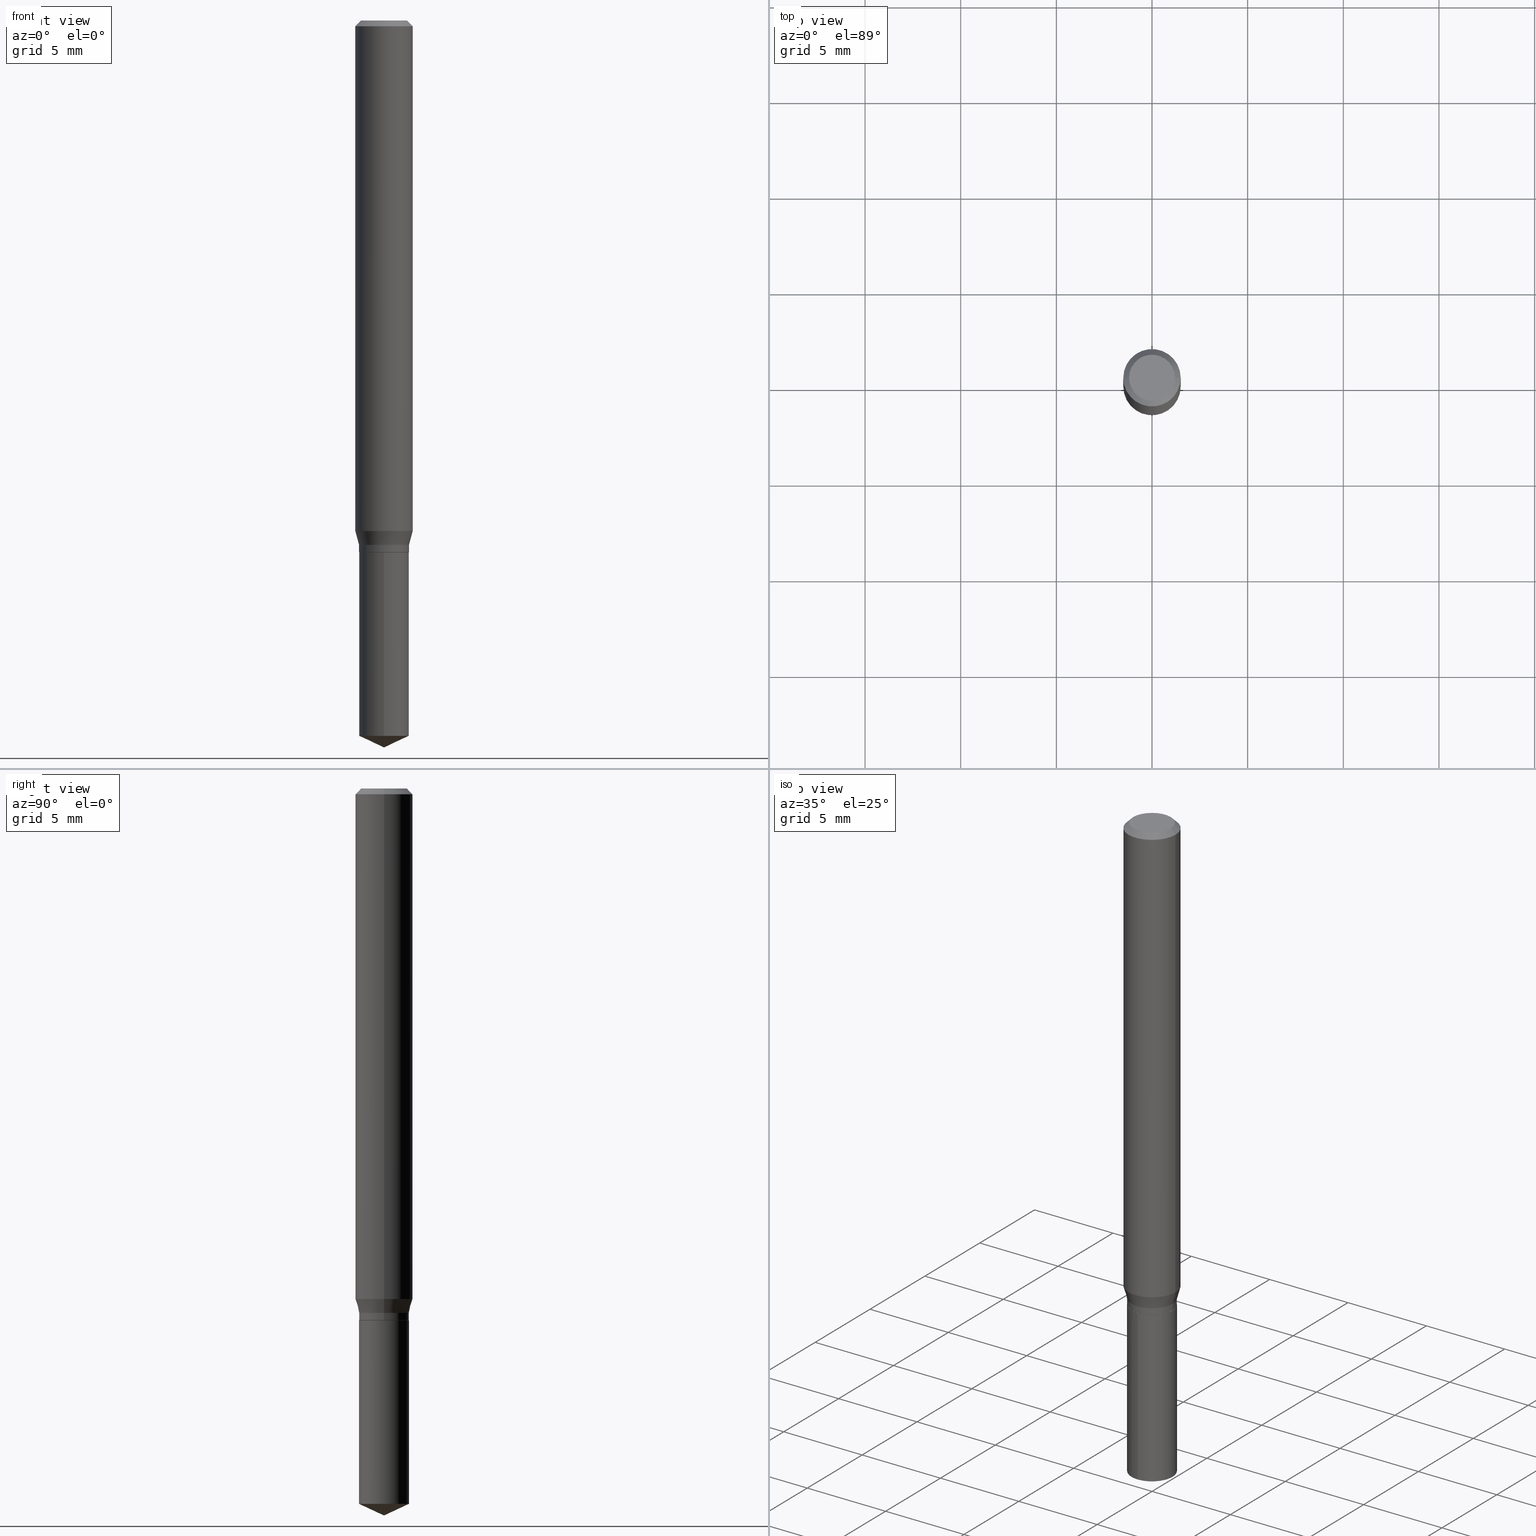
[diagram: canonical four-view strip — front | top / right | iso, engineering-drawing reading convention]
A machine part, canonical four-view strip (front | top / right | iso — engineering-drawing reading convention). The complete STEP part file that produces these views, byte-faithful:
ISO-10303-21;
HEADER;
FILE_DESCRIPTION (( 'STEP AP203' ),
    '1' );
FILE_NAME ('07674.STEP',
    '2024-04-24T00:48:47',
    ( '' ),
    ( '' ),
    'SwSTEP 2.0',
    'SolidWorks 2023',
    '' );
FILE_SCHEMA (( 'CONFIG_CONTROL_DESIGN' ));
ENDSEC;

DATA;
#1 = LINE ( 'NONE', #415, #367 ) ;
#2 = LINE ( 'NONE', #273, #110 ) ;
#3 = CARTESIAN_POINT ( 'NONE',  ( 2.888098660104663766E-31, -4.123439461173779647E-17, -0.01181000000000007044 ) ) ;
#4 = DIRECTION ( 'NONE',  ( 1.000000000000000000, -6.982962677686266711E-15, 0.000000000000000000 ) ) ;
#5 = DIRECTION ( 'NONE',  ( -2.445458899330790108E-29, 3.491495526022433205E-15, 1.000000000000000000 ) ) ;
#6 = VECTOR ( 'NONE', #50, 39.37007874015748143 ) ;
#7 = APPROVAL_PERSON_ORGANIZATION ( #27, #297, #215 ) ;
#8 = VERTEX_POINT ( 'NONE', #128 ) ;
#9 = DIRECTION ( 'NONE',  ( -6.982962677686265133E-15, -1.000000000000000000, 5.314879365105569519E-15 ) ) ;
#10 = EDGE_CURVE ( 'NONE', #230, #161, #411, .T. ) ;
#11 = CARTESIAN_POINT ( 'NONE',  ( 0.05904999999999999832, -4.463468013801466955E-16, -0.01181000000000007044 ) ) ;
#12 = CARTESIAN_POINT ( 'NONE',  ( 0.05904999999999999832, -4.535783407291118600E-16, -0.01181000000000007044 ) ) ;
#13 = CC_DESIGN_DATE_AND_TIME_ASSIGNMENT ( #63, #480, ( #253 ) ) ;
#14 = ORIENTED_EDGE ( 'NONE', *, *, #449, .T. ) ;
#15 = FACE_OUTER_BOUND ( 'NONE', #142, .T. ) ;
#16 = AXIS2_PLACEMENT_3D ( 'NONE', #113, #380, #234 ) ;
#17 = VECTOR ( 'NONE', #354, 39.37007874015748143 ) ;
#18 = CARTESIAN_POINT ( 'NONE',  ( 4.132873053354867254E-48, -5.900647395337818946E-34, -1.690012582823346072E-19 ) ) ;
#19 = DATE_AND_TIME ( #440, #95 ) ;
#20 = VERTEX_POINT ( 'NONE', #181 ) ;
#21 = DIRECTION ( 'NONE',  ( -6.982962677686265133E-15, -1.000000000000000000, 5.314879365105569519E-15 ) ) ;
#22 = EDGE_LOOP ( 'NONE', ( #339, #266 ) ) ;
#23 = AXIS2_PLACEMENT_3D ( 'NONE', #41, #157, #4 ) ;
#24 = DATE_TIME_ROLE ( 'classification_date' ) ;
#25 = APPROVAL_PERSON_ORGANIZATION ( #133, #53, #138 ) ;
#26 = ORIENTED_EDGE ( 'NONE', *, *, #296, .F. ) ;
#27 = PERSON_AND_ORGANIZATION ( #320, #239 ) ;
#28 = DIRECTION ( 'NONE',  ( -2.445458899330790108E-29, 3.491495526022433205E-15, 1.000000000000000000 ) ) ;
#29 = APPLICATION_PROTOCOL_DEFINITION ( 'international standard', 'config_control_design', 1994, #476 ) ;
#30 = ORIENTED_EDGE ( 'NONE', *, *, #463, .T. ) ;
#31 = EDGE_CURVE ( 'NONE', #84, #333, #94, .T. ) ;
#32 = CLOSED_SHELL ( 'NONE', ( #428, #131, #363, #168, #400, #361, #313, #40, #126, #434, #478, #66 ) ) ;
#33 = EDGE_LOOP ( 'NONE', ( #447, #432, #130, #73 ) ) ;
#34 = EDGE_LOOP ( 'NONE', ( #55, #136, #114 ) ) ;
#35 = DIRECTION ( 'NONE',  ( -2.445468806185136877E-29, 3.491481338843145188E-15, 1.000000000000000000 ) ) ;
#36 = DIRECTION ( 'NONE',  ( -2.445468806185136597E-29, 3.491481338843145583E-15, 1.000000000000000000 ) ) ;
#37 = DIRECTION ( 'NONE',  ( 2.445458899330789267E-29, -3.491495526022433599E-15, -1.000000000000000000 ) ) ;
#38 = FACE_OUTER_BOUND ( 'NONE', #479, .T. ) ;
#39 = CIRCLE ( 'NONE', #103, 0.05139999999999999430 ) ;
#40 = ADVANCED_FACE ( 'NONE', ( #187 ), #260, .T. ) ;
#41 = CARTESIAN_POINT ( 'NONE',  ( 2.888098660104663766E-31, -4.123439461173779647E-17, -0.01181000000000007044 ) ) ;
#42 = FACE_OUTER_BOUND ( 'NONE', #454, .T. ) ;
#43 = ADVANCED_FACE ( 'NONE', ( #446 ), #370, .T. ) ;
#44 = DIRECTION ( 'NONE',  ( 1.000000000000000000, -6.982962677686267499E-15, 4.876176775795935793E-29 ) ) ;
#45 = DIRECTION ( 'NONE',  ( -1.000000000000000000, 6.982962677686266711E-15, 0.000000000000000000 ) ) ;
#46 = DIRECTION ( 'NONE',  ( -0.7071067811865453523, 2.468850131082234184E-15, -0.7071067811865496822 ) ) ;
#47 = EDGE_CURVE ( 'NONE', #193, #20, #106, .T. ) ;
#48 = DIRECTION ( 'NONE',  ( 1.000000000000000000, -6.982962677686261977E-15, 0.000000000000000000 ) ) ;
#49 = DIRECTION ( 'NONE',  ( -6.982962677686265133E-15, -1.000000000000000000, 2.657439682552784759E-15 ) ) ;
#50 = DIRECTION ( 'NONE',  ( 0.7071067811865453523, -7.319954787623248157E-15, -0.7071067811865496822 ) ) ;
#51 = CARTESIAN_POINT ( 'NONE',  ( -0.04724000000000000421, 3.504923541997677355E-16, -3.380025165670481712E-19 ) ) ;
#52 = EDGE_CURVE ( 'NONE', #414, #484, #281, .T. ) ;
#53 = APPROVAL ( #176, 'UNSPECIFIED' ) ;
#54 = DIRECTION ( 'NONE',  ( -2.445468806185136597E-29, 3.491481338843145583E-15, 1.000000000000000000 ) ) ;
#55 = ORIENTED_EDGE ( 'NONE', *, *, #194, .F. ) ;
#56 = CIRCLE ( 'NONE', #292, 0.04724000000000000421 ) ;
#57 =( GEOMETRIC_REPRESENTATION_CONTEXT ( 3 ) GLOBAL_UNCERTAINTY_ASSIGNED_CONTEXT ( ( #287 ) ) GLOBAL_UNIT_ASSIGNED_CONTEXT ( ( #466, #145, #336 ) ) REPRESENTATION_CONTEXT ( 'NONE', 'WORKASPACE' ) );
#58 = COORDINATED_UNIVERSAL_TIME_OFFSET ( 5, 0, .BEHIND. ) ;
#59 = DIRECTION ( 'NONE',  ( -2.445458899330790108E-29, 3.491495526022433205E-15, 1.000000000000000000 ) ) ;
#60 = COORDINATED_UNIVERSAL_TIME_OFFSET ( 5, 0, .BEHIND. ) ;
#61 = VERTEX_POINT ( 'NONE', #166 ) ;
#62 = AXIS2_PLACEMENT_3D ( 'NONE', #468, #120, #44 ) ;
#63 = DATE_AND_TIME ( #472, #488 ) ;
#64 = CARTESIAN_POINT ( 'NONE',  ( -0.05139999999999999430, -3.428450082539327784E-15, -1.093999999999999861 ) ) ;
#65 = CALENDAR_DATE ( 2024, 23, 4 ) ;
#66 = ADVANCED_FACE ( 'NONE', ( #124 ), #331, .T. ) ;
#67 = MANIFOLD_SOLID_BREP ( 'Body-Move/Copy2[2]', #32 ) ;
#68 = CLOSED_SHELL ( 'NONE', ( #43, #392, #482, #105, #98 ) ) ;
#69 = AXIS2_PLACEMENT_3D ( 'NONE', #430, #388, #48 ) ;
#70 = DIRECTION ( 'NONE',  ( 1.000000000000000000, -6.982962677686263555E-15, 0.000000000000000000 ) ) ;
#71 = ORIENTED_EDGE ( 'NONE', *, *, #449, .F. ) ;
#72 = DIRECTION ( 'NONE',  ( 1.000000000000000000, -6.982962677686266711E-15, 4.876185090822587894E-29 ) ) ;
#73 = ORIENTED_EDGE ( 'NONE', *, *, #302, .F. ) ;
#74 = DIRECTION ( 'NONE',  ( -2.445468806185136877E-29, 3.491481338843145188E-15, 1.000000000000000000 ) ) ;
#75 = EDGE_LOOP ( 'NONE', ( #489, #393, #442, #441 ) ) ;
#76 = CARTESIAN_POINT ( 'NONE',  ( 0.04724000000000000421, -3.852183633974369345E-16, -3.380025165621689721E-19 ) ) ;
#77 = AXIS2_PLACEMENT_3D ( 'NONE', #299, #28, #374 ) ;
#78 = AXIS2_PLACEMENT_3D ( 'NONE', #18, #470, #201 ) ;
#79 = CARTESIAN_POINT ( 'NONE',  ( 0.05905000000000006771, -4.123439461173745257E-16, 2.879382386107503723E-30 ) ) ;
#80 = CARTESIAN_POINT ( 'NONE',  ( 2.888098660104663766E-31, -4.123439461173779647E-17, -0.01181000000000007044 ) ) ;
#81 = EDGE_CURVE ( 'NONE', #61, #193, #263, .T. ) ;
#82 = PLANE ( 'NONE',  #164 ) ;
#83 = DIRECTION ( 'NONE',  ( -2.445468806185136877E-29, 3.491481338843145188E-15, 1.000000000000000000 ) ) ;
#84 = VERTEX_POINT ( 'NONE', #64 ) ;
#85 = CYLINDRICAL_SURFACE ( 'NONE', #62, 0.05139999999999999430 ) ;
#86 = AXIS2_PLACEMENT_3D ( 'NONE', #228, #240, #49 ) ;
#87 = CARTESIAN_POINT ( 'NONE',  ( 2.676565608369632355E-29, -3.821426325363822773E-15, -1.094500000000000028 ) ) ;
#88 = AXIS2_PLACEMENT_3D ( 'NONE', #306, #112, #227 ) ;
#89 = CARTESIAN_POINT ( 'NONE',  ( 0.000000000000000000, 0.000000000000000000, 0.000000000000000000 ) ) ;
#90 = CARTESIAN_POINT ( 'NONE',  ( 2.638905388754380459E-29, -3.767657512745638097E-15, -1.079099999999999948 ) ) ;
#91 = EDGE_CURVE ( 'NONE', #191, #20, #483, .T. ) ;
#92 = ORIENTED_EDGE ( 'NONE', *, *, #194, .T. ) ;
#93 = PERSON_AND_ORGANIZATION ( #320, #239 ) ;
#94 = CIRCLE ( 'NONE', #143, 0.05139999999999999430 ) ;
#95 = LOCAL_TIME ( 20, 48, 47.00000000000000000, #141 ) ;
#96 = PERSON_AND_ORGANIZATION ( #320, #239 ) ;
#97 = ORIENTED_EDGE ( 'NONE', *, *, #206, .F. ) ;
#98 = ADVANCED_FACE ( 'NONE', ( #192 ), #310, .F. ) ;
#99 = EDGE_LOOP ( 'NONE', ( #167, #405, #186, #26 ) ) ;
#100 = PERSON_AND_ORGANIZATION_ROLE ( 'creator' ) ;
#101 = CARTESIAN_POINT ( 'NONE',  ( 0.000000000000000000, 0.000000000000000000, 0.000000000000000000 ) ) ;
#102 = VECTOR ( 'NONE', #200, 39.37007874015748143 ) ;
#103 = AXIS2_PLACEMENT_3D ( 'NONE', #90, #421, #462 ) ;
#104 = APPROVAL_DATE_TIME ( #19, #140 ) ;
#105 = ADVANCED_FACE ( 'NONE', ( #195 ), #344, .T. ) ;
#106 = LINE ( 'NONE', #258, #123 ) ;
#107 = ORIENTED_EDGE ( 'NONE', *, *, #358, .F. ) ;
#108 = DIRECTION ( 'NONE',  ( 1.000000000000000000, -6.982962677686261977E-15, 0.000000000000000000 ) ) ;
#109 = AXIS2_PLACEMENT_3D ( 'NONE', #80, #382, #45 ) ;
#110 = VECTOR ( 'NONE', #35, 39.37007874015748143 ) ;
#111 = ORIENTED_EDGE ( 'NONE', *, *, #319, .T. ) ;
#112 = DIRECTION ( 'NONE',  ( -2.445468806185136597E-29, 3.491481338843145583E-15, 1.000000000000000000 ) ) ;
#113 = CARTESIAN_POINT ( 'NONE',  ( 2.638905388754380459E-29, -3.767657512745638097E-15, -1.079099999999999948 ) ) ;
#114 = ORIENTED_EDGE ( 'NONE', *, *, #81, .F. ) ;
#115 = DIRECTION ( 'NONE',  ( -2.445458899330790108E-29, 3.491495526022433599E-15, 1.000000000000000000 ) ) ;
#116 = VECTOR ( 'NONE', #46, 39.37007874015748143 ) ;
#117 = CARTESIAN_POINT ( 'NONE',  ( 2.638905388754380459E-29, -3.767657512745638097E-15, -1.079099999999999948 ) ) ;
#118 = CYLINDRICAL_SURFACE ( 'NONE', #249, 0.05905000000000006771 ) ;
#119 = DIRECTION ( 'NONE',  ( 1.000000000000000000, -6.982962677686266711E-15, 4.876185090822587894E-29 ) ) ;
#120 = DIRECTION ( 'NONE',  ( -2.445468806185136597E-29, 3.491481338843145583E-15, 1.000000000000000000 ) ) ;
#121 = FACE_OUTER_BOUND ( 'NONE', #207, .T. ) ;
#122 = CARTESIAN_POINT ( 'NONE',  ( 0.000000000000000000, 0.000000000000000000, 0.000000000000000000 ) ) ;
#123 = VECTOR ( 'NONE', #262, 39.37007874015748143 ) ;
#124 = FACE_OUTER_BOUND ( 'NONE', #437, .T. ) ;
#125 = CIRCLE ( 'NONE', #298, 0.05905000000000013710 ) ;
#126 = ADVANCED_FACE ( 'NONE', ( #42 ), #386, .T. ) ;
#127 = CARTESIAN_POINT ( 'NONE',  ( 0.05139999999999999430, -4.126581794378712641E-15, -1.079099999999999948 ) ) ;
#128 = CARTESIAN_POINT ( 'NONE',  ( -0.05905000000000013710, -3.248399576289951039E-15, -1.050549811322097682 ) ) ;
#129 = DIRECTION ( 'NONE',  ( -2.445458899330790108E-29, 3.491495526022433205E-15, 1.000000000000000000 ) ) ;
#130 = ORIENTED_EDGE ( 'NONE', *, *, #91, .F. ) ;
#131 = ADVANCED_FACE ( 'NONE', ( #274 ), #376, .T. ) ;
#132 = EDGE_LOOP ( 'NONE', ( #250, #92, #246 ) ) ;
#133 = PERSON_AND_ORGANIZATION ( #320, #239 ) ;
#134 = ADVANCED_BREP_SHAPE_REPRESENTATION ( '07674', ( #219, #67, #345 ), #57 ) ;
#135 = EDGE_CURVE ( 'NONE', #403, #300, #56, .T. ) ;
#136 = ORIENTED_EDGE ( 'NONE', *, *, #348, .T. ) ;
#137 = VECTOR ( 'NONE', #115, 39.37007874015748143 ) ;
#138 = APPROVAL_ROLE ( '' ) ;
#139 = DATE_AND_TIME ( #65, #149 ) ;
#140 = APPROVAL ( #334, 'UNSPECIFIED' ) ;
#141 = COORDINATED_UNIVERSAL_TIME_OFFSET ( 5, 0, .BEHIND. ) ;
#142 = EDGE_LOOP ( 'NONE', ( #456, #111, #245, #286 ) ) ;
#143 = AXIS2_PLACEMENT_3D ( 'NONE', #413, #36, #70 ) ;
#144 = CIRCLE ( 'NONE', #399, 0.05139999999999999430 ) ;
#145 =( NAMED_UNIT ( * ) PLANE_ANGLE_UNIT ( ) SI_UNIT ( $, .RADIAN. ) );
#146 = EDGE_CURVE ( 'NONE', #305, #8, #232, .T. ) ;
#147 = PRODUCT_DEFINITION_SHAPE ( 'NONE', 'NONE',  #253 ) ;
#148 = AXIS2_PLACEMENT_3D ( 'NONE', #362, #327, #289 ) ;
#149 = LOCAL_TIME ( 20, 48, 47.00000000000000000, #60 ) ;
#150 = DIRECTION ( 'NONE',  ( 6.439704144417050863E-15, 0.9063077870366550437, 0.4226182617406884501 ) ) ;
#151 = LINE ( 'NONE', #311, #337 ) ;
#152 = EDGE_CURVE ( 'NONE', #300, #414, #275, .T. ) ;
#153 = DIRECTION ( 'NONE',  ( 2.445468806185136597E-29, -3.491481338843145583E-15, -1.000000000000000000 ) ) ;
#154 = DIRECTION ( 'NONE',  ( -6.328713451373394622E-15, -0.9063077870366521571, 0.4226182617406947784 ) ) ;
#155 = FACE_OUTER_BOUND ( 'NONE', #34, .T. ) ;
#156 = PRODUCT_DEFINITION_FORMATION_WITH_SPECIFIED_SOURCE ( 'ANY', '', #312, .NOT_KNOWN. ) ;
#157 = DIRECTION ( 'NONE',  ( -2.445468806185136597E-29, 3.491481338843145583E-15, 1.000000000000000000 ) ) ;
#158 = LINE ( 'NONE', #247, #377 ) ;
#159 = CARTESIAN_POINT ( 'NONE',  ( 3.600048621020370796E-29, -5.139926017961446759E-15, -1.472131786370833639 ) ) ;
#160 = EDGE_CURVE ( 'NONE', #333, #486, #1, .T. ) ;
#161 = VERTEX_POINT ( 'NONE', #315 ) ;
#162 = CYLINDRICAL_SURFACE ( 'NONE', #256, 0.05139999999999999430 ) ;
#163 = CONICAL_SURFACE ( 'NONE', #16, 0.05139999999999999430, 0.2617993877991501850 ) ;
#164 = AXIS2_PLACEMENT_3D ( 'NONE', #276, #196, #359 ) ;
#165 = DIRECTION ( 'NONE',  ( -6.982962677686267499E-15, -1.000000000000000000, 3.520397390770389972E-15 ) ) ;
#166 = CARTESIAN_POINT ( 'NONE',  ( -3.589242816330381089E-16, -0.05140000000000514990, -1.472131786370833195 ) ) ;
#167 = ORIENTED_EDGE ( 'NONE', *, *, #47, .F. ) ;
#168 = ADVANCED_FACE ( 'NONE', ( #121 ), #163, .T. ) ;
#169 = DIRECTION ( 'NONE',  ( 0.000000000000000000, 0.000000000000000000, 1.000000000000000000 ) ) ;
#170 = CARTESIAN_POINT ( 'NONE',  ( 3.600048621020370796E-29, -5.139926017961446759E-15, -1.472131786370833639 ) ) ;
#171 = AXIS2_PLACEMENT_3D ( 'NONE', #3, #153, #314 ) ;
#172 = ORIENTED_EDGE ( 'NONE', *, *, #31, .T. ) ;
#173 = CONICAL_SURFACE ( 'NONE', #69, 0.05090000000000000080, 0.7853981633972689780 ) ;
#174 = CALENDAR_DATE ( 2024, 23, 4 ) ;
#175 = ORIENTED_EDGE ( 'NONE', *, *, #261, .F. ) ;
#176 = APPROVAL_STATUS ( 'not_yet_approved' ) ;
#177 = CARTESIAN_POINT ( 'NONE',  ( 0.000000000000000000, 0.000000000000000000, 0.000000000000000000 ) ) ;
#178 = EDGE_CURVE ( 'NONE', #484, #414, #238, .T. ) ;
#179 = APPLICATION_CONTEXT ( 'configuration controlled 3d designs of mechanical parts and assemblies' ) ;
#180 = PERSON_AND_ORGANIZATION ( #320, #239 ) ;
#181 = CARTESIAN_POINT ( 'NONE',  ( 3.652189661807275455E-16, 0.05139999999999619179, -1.094500000000000028 ) ) ;
#182 = CONICAL_SURFACE ( 'NONE', #338, 0.05139999999999999430, 0.2617993877991501850 ) ;
#183 = EDGE_LOOP ( 'NONE', ( #243, #175 ) ) ;
#184 = CARTESIAN_POINT ( 'NONE',  ( -3.589242816330473287E-16, -0.05140000000000383151, -1.094499999999999806 ) ) ;
#185 = ORIENTED_EDGE ( 'NONE', *, *, #91, .T. ) ;
#186 = ORIENTED_EDGE ( 'NONE', *, *, #302, .T. ) ;
#187 = FACE_OUTER_BOUND ( 'NONE', #75, .T. ) ;
#188 = DIRECTION ( 'NONE',  ( 6.982962677686265922E-15, 1.000000000000000000, -3.491495526022433599E-15 ) ) ;
#189 = CC_DESIGN_PERSON_AND_ORGANIZATION_ASSIGNMENT ( #180, #100, ( #156 ) ) ;
#190 = AXIS2_PLACEMENT_3D ( 'NONE', #265, #340, #72 ) ;
#191 = VERTEX_POINT ( 'NONE', #241 ) ;
#192 = FACE_OUTER_BOUND ( 'NONE', #404, .T. ) ;
#193 = VERTEX_POINT ( 'NONE', #353 ) ;
#194 = EDGE_CURVE ( 'NONE', #475, #61, #151, .T. ) ;
#195 = FACE_OUTER_BOUND ( 'NONE', #99, .T. ) ;
#196 = DIRECTION ( 'NONE',  ( -2.438088387897960049E-29, 3.491481338843145188E-15, 1.000000000000000000 ) ) ;
#197 = CARTESIAN_POINT ( 'NONE',  ( 8.265746106709734507E-48, -1.180129479067563789E-33, -3.380025165646692144E-19 ) ) ;
#198 = PLANE ( 'NONE',  #78 ) ;
#199 = CIRCLE ( 'NONE', #445, 0.05139999999999999430 ) ;
#200 = DIRECTION ( 'NONE',  ( -0.2588190451025214611, 5.211531920934550253E-15, 0.9659258262890679791 ) ) ;
#201 = DIRECTION ( 'NONE',  ( -1.000000000000000000, 6.982962677686265922E-15, -4.876176775795935793E-29 ) ) ;
#202 = CARTESIAN_POINT ( 'NONE',  ( 0.05090000000000000080, -4.176859125658053522E-15, -1.094500000000000028 ) ) ;
#203 = CARTESIAN_POINT ( 'NONE',  ( -9.261924752013118283E-28, 1.322368428517963298E-13, 37.87397874015748300 ) ) ;
#204 = DIRECTION ( 'NONE',  ( -2.445468806185136597E-29, 3.491481338843145583E-15, 1.000000000000000000 ) ) ;
#205 = AXIS2_PLACEMENT_3D ( 'NONE', #177, #220, #343 ) ;
#206 = EDGE_CURVE ( 'NONE', #161, #84, #277, .T. ) ;
#207 = EDGE_LOOP ( 'NONE', ( #208, #394, #444, #324 ) ) ;
#208 = ORIENTED_EDGE ( 'NONE', *, *, #222, .T. ) ;
#209 = APPROVAL_STATUS ( 'not_yet_approved' ) ;
#210 = ORIENTED_EDGE ( 'NONE', *, *, #135, .F. ) ;
#211 = PERSON_AND_ORGANIZATION ( #320, #239 ) ;
#212 = EDGE_CURVE ( 'NONE', #8, #484, #422, .T. ) ;
#213 = AXIS2_PLACEMENT_3D ( 'NONE', #203, #129, #288 ) ;
#214 = PERSON_AND_ORGANIZATION_ROLE ( 'creator' ) ;
#215 = APPROVAL_ROLE ( '' ) ;
#216 = ORIENTED_EDGE ( 'NONE', *, *, #278, .F. ) ;
#217 = CARTESIAN_POINT ( 'NONE',  ( 2.888098660104663766E-31, -4.123439461173779647E-17, -0.01181000000000007044 ) ) ;
#218 = EDGE_CURVE ( 'NONE', #294, #414, #419, .T. ) ;
#219 = MANIFOLD_SOLID_BREP ( 'Body-Move/Copy2[1]', #68 ) ;
#220 = DIRECTION ( 'NONE',  ( -2.445468806185136597E-29, 3.491481338843145583E-15, 1.000000000000000000 ) ) ;
#221 = AXIS2_PLACEMENT_3D ( 'NONE', #335, #451, #108 ) ;
#222 = EDGE_CURVE ( 'NONE', #486, #305, #199, .T. ) ;
#223 = CC_DESIGN_APPROVAL ( #53, ( #156 ) ) ;
#224 = CC_DESIGN_SECURITY_CLASSIFICATION ( #283, ( #156 ) ) ;
#225 = CARTESIAN_POINT ( 'NONE',  ( -0.05139999999999999430, -3.428450082539327784E-15, -1.079099999999999948 ) ) ;
#226 = CARTESIAN_POINT ( 'NONE',  ( 0.05139999999999999430, -4.178604866327475025E-15, -1.093999999999999861 ) ) ;
#227 = DIRECTION ( 'NONE',  ( 1.000000000000000000, -6.982962677686264344E-15, 0.000000000000000000 ) ) ;
#228 = CARTESIAN_POINT ( 'NONE',  ( 2.676565608369631794E-29, -3.821426325363822773E-15, -1.094499999999999806 ) ) ;
#229 = AXIS2_PLACEMENT_3D ( 'NONE', #87, #420, #383 ) ;
#230 = VERTEX_POINT ( 'NONE', #202 ) ;
#231 = DIRECTION ( 'NONE',  ( -2.445458899330790108E-29, 3.491495526022433205E-15, 1.000000000000000000 ) ) ;
#232 = LINE ( 'NONE', #465, #102 ) ;
#233 = CARTESIAN_POINT ( 'NONE',  ( 3.658651059288794515E-29, -5.223626456482161457E-15, -1.496099999999999985 ) ) ;
#234 = DIRECTION ( 'NONE',  ( 1.000000000000000000, -6.982962677686263555E-15, 0.000000000000000000 ) ) ;
#235 = DIRECTION ( 'NONE',  ( -2.445468806185136597E-29, 3.491481338843145583E-15, 1.000000000000000000 ) ) ;
#236 = DIRECTION ( 'NONE',  ( 1.000000000000000000, -6.982962677686263555E-15, 0.000000000000000000 ) ) ;
#237 = LENGTH_MEASURE_WITH_UNIT ( LENGTH_MEASURE( 0.02539999999999999897 ), #464 );
#238 = CIRCLE ( 'NONE', #23, 0.05904999999999999832 ) ;
#239 = ORGANIZATION ( 'UNSPECIFIED', 'UNSPECIFIED', '' ) ;
#240 = DIRECTION ( 'NONE',  ( -2.445458899330790108E-29, 3.491495526022433205E-15, 1.000000000000000000 ) ) ;
#241 = CARTESIAN_POINT ( 'NONE',  ( -3.589242816330473287E-16, -0.05140000000000383151, -1.094499999999999806 ) ) ;
#242 = ORIENTED_EDGE ( 'NONE', *, *, #261, .T. ) ;
#243 = ORIENTED_EDGE ( 'NONE', *, *, #10, .F. ) ;
#244 = CARTESIAN_POINT ( 'NONE',  ( 0.05139999999999999430, -4.126581794378712641E-15, -1.079099999999999948 ) ) ;
#245 = ORIENTED_EDGE ( 'NONE', *, *, #222, .F. ) ;
#246 = ORIENTED_EDGE ( 'NONE', *, *, #417, .F. ) ;
#247 = CARTESIAN_POINT ( 'NONE',  ( 0.05090000000000000080, -4.176859125658053522E-15, -1.094500000000000028 ) ) ;
#248 = COORDINATED_UNIVERSAL_TIME_OFFSET ( 5, 0, .BEHIND. ) ;
#249 = AXIS2_PLACEMENT_3D ( 'NONE', #89, #424, #325 ) ;
#250 = ORIENTED_EDGE ( 'NONE', *, *, #348, .F. ) ;
#251 = APPROVAL_DATE_TIME ( #409, #53 ) ;
#252 = EDGE_LOOP ( 'NONE', ( #452, #401, #307, #473 ) ) ;
#253 = PRODUCT_DEFINITION ( 'UNKNOWN', '', #156, #397 ) ;
#254 = APPROVAL_DATE_TIME ( #295, #297 ) ;
#255 = MECHANICAL_CONTEXT ( 'NONE', #179, 'mechanical' ) ;
#256 = AXIS2_PLACEMENT_3D ( 'NONE', #122, #235, #384 ) ;
#257 = CALENDAR_DATE ( 2024, 23, 4 ) ;
#258 = CARTESIAN_POINT ( 'NONE',  ( 3.652189661807182270E-16, 0.05139999999999617791, -1.094500000000000028 ) ) ;
#259 = CC_DESIGN_PERSON_AND_ORGANIZATION_ASSIGNMENT ( #96, #402, ( #283 ) ) ;
#260 = CYLINDRICAL_SURFACE ( 'NONE', #205, 0.05905000000000006771 ) ;
#261 = EDGE_CURVE ( 'NONE', #161, #230, #360, .T. ) ;
#262 = DIRECTION ( 'NONE',  ( -2.445458899330790108E-29, 3.491495526022433599E-15, 1.000000000000000000 ) ) ;
#263 = CIRCLE ( 'NONE', #271, 0.05140000000000000818 ) ;
#264 = DIRECTION ( 'NONE',  ( -2.445468806185136597E-29, 3.491481338843145583E-15, 1.000000000000000000 ) ) ;
#265 = CARTESIAN_POINT ( 'NONE',  ( 8.265746106709734507E-48, -1.180129479067563789E-33, -3.380025165646692144E-19 ) ) ;
#266 = ORIENTED_EDGE ( 'NONE', *, *, #323, .T. ) ;
#267 = CARTESIAN_POINT ( 'NONE',  ( 2.675342873966538993E-29, -3.819680584694400481E-15, -1.093999999999999861 ) ) ;
#268 = CARTESIAN_POINT ( 'NONE',  ( 2.676565608369631794E-29, -3.821426325363822773E-15, -1.094499999999999806 ) ) ;
#269 = CARTESIAN_POINT ( 'NONE',  ( -0.05090000000000000080, -3.459760072861932167E-15, -1.094500000000000028 ) ) ;
#270 = ORIENTED_EDGE ( 'NONE', *, *, #309, .F. ) ;
#271 = AXIS2_PLACEMENT_3D ( 'NONE', #170, #59, #21 ) ;
#272 = AXIS2_PLACEMENT_3D ( 'NONE', #391, #352, #165 ) ;
#273 = CARTESIAN_POINT ( 'NONE',  ( -0.05139999999999999430, 3.652189661806914551E-16, -2.528332636391021463E-30 ) ) ;
#274 = FACE_OUTER_BOUND ( 'NONE', #329, .T. ) ;
#275 = LINE ( 'NONE', #11, #6 ) ;
#276 = CARTESIAN_POINT ( 'NONE',  ( 6.255723195914554260E-30, -6.758565450182621025E-15, -1.094500000000000028 ) ) ;
#277 = LINE ( 'NONE', #269, #398 ) ;
#278 = EDGE_CURVE ( 'NONE', #403, #484, #385, .T. ) ;
#279 = DIRECTION ( 'NONE',  ( -2.445468806185136597E-29, 3.491481338843145583E-15, 1.000000000000000000 ) ) ;
#280 = ORIENTED_EDGE ( 'NONE', *, *, #278, .T. ) ;
#281 = CIRCLE ( 'NONE', #316, 0.05904999999999999832 ) ;
#282 = LINE ( 'NONE', #127, #17 ) ;
#283 = SECURITY_CLASSIFICATION ( '', '', #477 ) ;
#284 = FACE_OUTER_BOUND ( 'NONE', #396, .T. ) ;
#285 = ORIENTED_EDGE ( 'NONE', *, *, #296, .T. ) ;
#286 = ORIENTED_EDGE ( 'NONE', *, *, #160, .F. ) ;
#287 = UNCERTAINTY_MEASURE_WITH_UNIT (LENGTH_MEASURE( 1.000000000000000082E-05 ), #466, 'distance_accuracy_value', 'NONE');
#288 = DIRECTION ( 'NONE',  ( -6.982962677686267499E-15, -1.000000000000000000, 3.520397390770389972E-15 ) ) ;
#289 = DIRECTION ( 'NONE',  ( 1.000000000000000000, -6.982962677686261977E-15, 0.000000000000000000 ) ) ;
#290 = ORIENTED_EDGE ( 'NONE', *, *, #323, .F. ) ;
#291 = PERSON_AND_ORGANIZATION ( #320, #239 ) ;
#292 = AXIS2_PLACEMENT_3D ( 'NONE', #197, #54, #119 ) ;
#293 = CIRCLE ( 'NONE', #326, 0.05140000000000000818 ) ;
#294 = VERTEX_POINT ( 'NONE', #350 ) ;
#295 = DATE_AND_TIME ( #174, #351 ) ;
#296 = EDGE_CURVE ( 'NONE', #20, #191, #474, .T. ) ;
#297 = APPROVAL ( #209, 'UNSPECIFIED' ) ;
#298 = AXIS2_PLACEMENT_3D ( 'NONE', #433, #204, #356 ) ;
#299 = CARTESIAN_POINT ( 'NONE',  ( 2.676565608369631794E-29, -3.821426325363822773E-15, -1.094499999999999806 ) ) ;
#300 = VERTEX_POINT ( 'NONE', #76 ) ;
#301 = VECTOR ( 'NONE', #83, 39.37007874015748143 ) ;
#302 = EDGE_CURVE ( 'NONE', #61, #191, #378, .T. ) ;
#303 = VECTOR ( 'NONE', #425, 39.37007874015748143 ) ;
#304 = CIRCLE ( 'NONE', #190, 0.04724000000000000421 ) ;
#305 = VERTEX_POINT ( 'NONE', #225 ) ;
#306 = CARTESIAN_POINT ( 'NONE',  ( 2.569086792931870576E-29, -3.667975061756291716E-15, -1.050549811322097682 ) ) ;
#307 = ORIENTED_EDGE ( 'NONE', *, *, #52, .F. ) ;
#308 = CARTESIAN_POINT ( 'NONE',  ( -0.05904999999999999832, 3.711095515056362547E-16, -0.01181000000000007044 ) ) ;
#309 = EDGE_CURVE ( 'NONE', #333, #84, #144, .T. ) ;
#310 = PLANE ( 'NONE',  #435 ) ;
#311 = CARTESIAN_POINT ( 'NONE',  ( 3.658651059288795076E-29, -5.223626456482161457E-15, -1.496099999999999985 ) ) ;
#312 = PRODUCT ( '07674', '07674', '', ( #255 ) ) ;
#313 = ADVANCED_FACE ( 'NONE', ( #373 ), #182, .T. ) ;
#314 = DIRECTION ( 'NONE',  ( -1.000000000000000000, 6.982962677686266711E-15, 0.000000000000000000 ) ) ;
#315 = CARTESIAN_POINT ( 'NONE',  ( -0.05090000000000000080, -3.457110845687820572E-15, -1.094500000000000028 ) ) ;
#316 = AXIS2_PLACEMENT_3D ( 'NONE', #217, #490, #357 ) ;
#317 = APPROVAL_PERSON_ORGANIZATION ( #369, #140, #328 ) ;
#318 = FACE_OUTER_BOUND ( 'NONE', #22, .T. ) ;
#319 = EDGE_CURVE ( 'NONE', #84, #305, #2, .T. ) ;
#320 = PERSON ( 'UNSPECIFIED', 'UNSPECIFIED', 'UNSPECIFIED', ('UNSPECIFIED'), ('UNSPECIFIED'), ('UNSPECIFIED') ) ;
#321 = CARTESIAN_POINT ( 'NONE',  ( -0.05904999999999999832, -1.435029242717674243E-15, -0.01181000000000007044 ) ) ;
#322 = FACE_OUTER_BOUND ( 'NONE', #183, .T. ) ;
#323 = EDGE_CURVE ( 'NONE', #300, #403, #304, .T. ) ;
#324 = ORIENTED_EDGE ( 'NONE', *, *, #395, .F. ) ;
#325 = DIRECTION ( 'NONE',  ( 1.000000000000000000, -6.982962677686266711E-15, 4.876176775795936353E-29 ) ) ;
#326 = AXIS2_PLACEMENT_3D ( 'NONE', #159, #5, #9 ) ;
#327 = DIRECTION ( 'NONE',  ( -2.445468806185136597E-29, 3.491481338843145583E-15, 1.000000000000000000 ) ) ;
#328 = APPROVAL_ROLE ( '' ) ;
#329 = EDGE_LOOP ( 'NONE', ( #290, #365, #426, #216 ) ) ;
#330 = COORDINATED_UNIVERSAL_TIME_OFFSET ( 5, 0, .BEHIND. ) ;
#331 = CONICAL_SURFACE ( 'NONE', #148, 0.05090000000000000080, 0.7853981633972689780 ) ;
#332 = ORIENTED_EDGE ( 'NONE', *, *, #463, .F. ) ;
#333 = VERTEX_POINT ( 'NONE', #226 ) ;
#334 = APPROVAL_STATUS ( 'not_yet_approved' ) ;
#335 = CARTESIAN_POINT ( 'NONE',  ( 2.676565608369632355E-29, -3.821426325363822773E-15, -1.094500000000000028 ) ) ;
#336 =( NAMED_UNIT ( * ) SI_UNIT ( $, .STERADIAN. ) SOLID_ANGLE_UNIT ( ) );
#337 = VECTOR ( 'NONE', #154, 39.37007874015748143 ) ;
#338 = AXIS2_PLACEMENT_3D ( 'NONE', #459, #264, #347 ) ;
#339 = ORIENTED_EDGE ( 'NONE', *, *, #135, .T. ) ;
#340 = DIRECTION ( 'NONE',  ( -2.445468806185136597E-29, 3.491481338843145583E-15, 1.000000000000000000 ) ) ;
#341 = ORIENTED_EDGE ( 'NONE', *, *, #146, .F. ) ;
#342 = LINE ( 'NONE', #487, #467 ) ;
#343 = DIRECTION ( 'NONE',  ( 1.000000000000000000, -6.982962677686266711E-15, 4.876176775795936353E-29 ) ) ;
#344 = CYLINDRICAL_SURFACE ( 'NONE', #443, 0.05140000000000000818 ) ;
#345 = AXIS2_PLACEMENT_3D ( 'NONE', #101, #169, #481 ) ;
#346 = PRODUCT_RELATED_PRODUCT_CATEGORY ( 'detail', '', ( #312 ) ) ;
#347 = DIRECTION ( 'NONE',  ( 1.000000000000000000, -6.982962677686263555E-15, 0.000000000000000000 ) ) ;
#348 = EDGE_CURVE ( 'NONE', #475, #193, #342, .T. ) ;
#349 = FACE_OUTER_BOUND ( 'NONE', #132, .T. ) ;
#350 = CARTESIAN_POINT ( 'NONE',  ( 0.05905000000000013710, -4.080319007873665847E-15, -1.050549811322097682 ) ) ;
#351 = LOCAL_TIME ( 20, 48, 47.00000000000000000, #330 ) ;
#352 = DIRECTION ( 'NONE',  ( -2.445458899330790108E-29, 3.491495526022433205E-15, 1.000000000000000000 ) ) ;
#353 = CARTESIAN_POINT ( 'NONE',  ( 3.652189661807274962E-16, 0.05139999999999486646, -1.472131786370833861 ) ) ;
#354 = DIRECTION ( 'NONE',  ( 0.2588190451025214611, 1.565188264969620982E-15, 0.9659258262890679791 ) ) ;
#355 = ORIENTED_EDGE ( 'NONE', *, *, #160, .T. ) ;
#356 = DIRECTION ( 'NONE',  ( 1.000000000000000000, -6.982962677686264344E-15, 0.000000000000000000 ) ) ;
#357 = DIRECTION ( 'NONE',  ( 1.000000000000000000, -6.982962677686266711E-15, 0.000000000000000000 ) ) ;
#358 = EDGE_CURVE ( 'NONE', #8, #294, #412, .T. ) ;
#359 = DIRECTION ( 'NONE',  ( 1.000000000000000000, -6.982962677686265922E-15, 4.876176775795935793E-29 ) ) ;
#360 = CIRCLE ( 'NONE', #229, 0.05090000000000000080 ) ;
#361 = ADVANCED_FACE ( 'NONE', ( #38 ), #162, .T. ) ;
#362 = CARTESIAN_POINT ( 'NONE',  ( 2.676565608369632355E-29, -3.821426325363822773E-15, -1.094500000000000028 ) ) ;
#363 = ADVANCED_FACE ( 'NONE', ( #381 ), #118, .T. ) ;
#364 = ORIENTED_EDGE ( 'NONE', *, *, #395, .T. ) ;
#365 = ORIENTED_EDGE ( 'NONE', *, *, #152, .T. ) ;
#366 = APPLICATION_PROTOCOL_DEFINITION ( 'international standard', 'config_control_design', 1994, #179 ) ;
#367 = VECTOR ( 'NONE', #74, 39.37007874015748143 ) ;
#368 = CC_DESIGN_DATE_AND_TIME_ASSIGNMENT ( #139, #24, ( #283 ) ) ;
#369 = PERSON_AND_ORGANIZATION ( #320, #239 ) ;
#370 = CYLINDRICAL_SURFACE ( 'NONE', #77, 0.05140000000000000818 ) ;
#371 = CC_DESIGN_APPROVAL ( #140, ( #253 ) ) ;
#372 = ORIENTED_EDGE ( 'NONE', *, *, #178, .T. ) ;
#373 = FACE_OUTER_BOUND ( 'NONE', #431, .T. ) ;
#374 = DIRECTION ( 'NONE',  ( -6.982962677686265133E-15, -1.000000000000000000, 2.657439682552784759E-15 ) ) ;
#375 = ORIENTED_EDGE ( 'NONE', *, *, #152, .F. ) ;
#376 = CONICAL_SURFACE ( 'NONE', #109, 0.05904999999999999832, 0.7853981633974452814 ) ;
#377 = VECTOR ( 'NONE', #429, 39.37007874015748854 ) ;
#378 = LINE ( 'NONE', #184, #137 ) ;
#379 = DIRECTION ( 'NONE',  ( -6.982962677686265133E-15, -1.000000000000000000, 2.657439682552784759E-15 ) ) ;
#380 = DIRECTION ( 'NONE',  ( -2.445468806185136597E-29, 3.491481338843145583E-15, 1.000000000000000000 ) ) ;
#381 = FACE_OUTER_BOUND ( 'NONE', #252, .T. ) ;
#382 = DIRECTION ( 'NONE',  ( 2.445468806185136597E-29, -3.491481338843145583E-15, -1.000000000000000000 ) ) ;
#383 = DIRECTION ( 'NONE',  ( 1.000000000000000000, -6.982962677686261977E-15, 0.000000000000000000 ) ) ;
#384 = DIRECTION ( 'NONE',  ( 1.000000000000000000, -6.982962677686267499E-15, 4.876176775795935793E-29 ) ) ;
#385 = LINE ( 'NONE', #308, #116 ) ;
#386 = CONICAL_SURFACE ( 'NONE', #171, 0.05904999999999999832, 0.7853981633974452814 ) ;
#387 = CONICAL_SURFACE ( 'NONE', #213, 84.42940631927586992, 1.134464013796322890 ) ;
#388 = DIRECTION ( 'NONE',  ( -2.445468806185136597E-29, 3.491481338843145583E-15, 1.000000000000000000 ) ) ;
#389 = DIRECTION ( 'NONE',  ( -0.7071067811864205632, 7.493145998869895043E-15, 0.7071067811866742492 ) ) ;
#390 = ORIENTED_EDGE ( 'NONE', *, *, #319, .F. ) ;
#391 = CARTESIAN_POINT ( 'NONE',  ( -9.261924752013118283E-28, 1.322368428517963298E-13, 37.87397874015748300 ) ) ;
#392 = ADVANCED_FACE ( 'NONE', ( #155 ), #387, .T. ) ;
#393 = ORIENTED_EDGE ( 'NONE', *, *, #358, .T. ) ;
#394 = ORIENTED_EDGE ( 'NONE', *, *, #146, .T. ) ;
#395 = EDGE_CURVE ( 'NONE', #486, #294, #282, .T. ) ;
#396 = EDGE_LOOP ( 'NONE', ( #469, #458, #270, #332 ) ) ;
#397 = DESIGN_CONTEXT ( 'detailed design', #476, 'design' ) ;
#398 = VECTOR ( 'NONE', #389, 39.37007874015748854 ) ;
#399 = AXIS2_PLACEMENT_3D ( 'NONE', #267, #416, #450 ) ;
#400 = ADVANCED_FACE ( 'NONE', ( #15 ), #85, .T. ) ;
#401 = ORIENTED_EDGE ( 'NONE', *, *, #212, .T. ) ;
#402 = PERSON_AND_ORGANIZATION_ROLE ( 'classification_officer' ) ;
#403 = VERTEX_POINT ( 'NONE', #51 ) ;
#404 = EDGE_LOOP ( 'NONE', ( #185, #285 ) ) ;
#405 = ORIENTED_EDGE ( 'NONE', *, *, #417, .T. ) ;
#406 = SHAPE_DEFINITION_REPRESENTATION ( #147, #134 ) ;
#407 = PERSON_AND_ORGANIZATION_ROLE ( 'design_owner' ) ;
#408 = CC_DESIGN_PERSON_AND_ORGANIZATION_ASSIGNMENT ( #211, #407, ( #312 ) ) ;
#409 = DATE_AND_TIME ( #257, #438 ) ;
#410 = CARTESIAN_POINT ( 'NONE',  ( 2.676565608369631794E-29, -3.821426325363822773E-15, -1.094499999999999806 ) ) ;
#411 = CIRCLE ( 'NONE', #221, 0.05090000000000000080 ) ;
#412 = CIRCLE ( 'NONE', #88, 0.05905000000000013710 ) ;
#413 = CARTESIAN_POINT ( 'NONE',  ( 2.675342873966538993E-29, -3.819680584694400481E-15, -1.093999999999999861 ) ) ;
#414 = VERTEX_POINT ( 'NONE', #12 ) ;
#415 = CARTESIAN_POINT ( 'NONE',  ( 0.05139999999999999430, -3.589242816330741006E-16, 2.506354862759110714E-30 ) ) ;
#416 = DIRECTION ( 'NONE',  ( -2.445468806185136597E-29, 3.491481338843145583E-15, 1.000000000000000000 ) ) ;
#417 = EDGE_CURVE ( 'NONE', #193, #61, #293, .T. ) ;
#418 = DIRECTION ( 'NONE',  ( -2.445458899330790108E-29, 3.491495526022433205E-15, 1.000000000000000000 ) ) ;
#419 = LINE ( 'NONE', #79, #301 ) ;
#420 = DIRECTION ( 'NONE',  ( -2.445468806185136597E-29, 3.491481338843145583E-15, 1.000000000000000000 ) ) ;
#421 = DIRECTION ( 'NONE',  ( -2.445468806185136597E-29, 3.491481338843145583E-15, 1.000000000000000000 ) ) ;
#422 = LINE ( 'NONE', #460, #303 ) ;
#423 = EDGE_CURVE ( 'NONE', #294, #8, #125, .T. ) ;
#424 = DIRECTION ( 'NONE',  ( -2.445468806185136597E-29, 3.491481338843145583E-15, 1.000000000000000000 ) ) ;
#425 = DIRECTION ( 'NONE',  ( -2.445468806185136877E-29, 3.491481338843145188E-15, 1.000000000000000000 ) ) ;
#426 = ORIENTED_EDGE ( 'NONE', *, *, #52, .T. ) ;
#427 = AXIS2_PLACEMENT_3D ( 'NONE', #410, #231, #448 ) ;
#428 = ADVANCED_FACE ( 'NONE', ( #284 ), #173, .T. ) ;
#429 = DIRECTION ( 'NONE',  ( 0.7071067811864205632, -2.468850131080928224E-15, 0.7071067811866742492 ) ) ;
#430 = CARTESIAN_POINT ( 'NONE',  ( 2.676565608369632355E-29, -3.821426325363822773E-15, -1.094500000000000028 ) ) ;
#431 = EDGE_LOOP ( 'NONE', ( #341, #14, #364, #107 ) ) ;
#432 = ORIENTED_EDGE ( 'NONE', *, *, #47, .T. ) ;
#433 = CARTESIAN_POINT ( 'NONE',  ( 2.569086792931870576E-29, -3.667975061756291716E-15, -1.050549811322097682 ) ) ;
#434 = ADVANCED_FACE ( 'NONE', ( #318 ), #198, .F. ) ;
#435 = AXIS2_PLACEMENT_3D ( 'NONE', #457, #37, #188 ) ;
#436 = PERSON_AND_ORGANIZATION_ROLE ( 'design_supplier' ) ;
#437 = EDGE_LOOP ( 'NONE', ( #97, #242, #30, #471 ) ) ;
#438 = LOCAL_TIME ( 20, 48, 47.00000000000000000, #58 ) ;
#439 = DIMENSIONAL_EXPONENTS ( 1.000000000000000000, 0.000000000000000000, 0.000000000000000000, 0.000000000000000000, 0.000000000000000000, 0.000000000000000000, 0.000000000000000000 ) ;
#440 = CALENDAR_DATE ( 2024, 23, 4 ) ;
#441 = ORIENTED_EDGE ( 'NONE', *, *, #178, .F. ) ;
#442 = ORIENTED_EDGE ( 'NONE', *, *, #218, .T. ) ;
#443 = AXIS2_PLACEMENT_3D ( 'NONE', #268, #418, #379 ) ;
#444 = ORIENTED_EDGE ( 'NONE', *, *, #423, .F. ) ;
#445 = AXIS2_PLACEMENT_3D ( 'NONE', #117, #279, #236 ) ;
#446 = FACE_OUTER_BOUND ( 'NONE', #33, .T. ) ;
#447 = ORIENTED_EDGE ( 'NONE', *, *, #81, .T. ) ;
#448 = DIRECTION ( 'NONE',  ( -6.982962677686265133E-15, -1.000000000000000000, 2.657439682552784759E-15 ) ) ;
#449 = EDGE_CURVE ( 'NONE', #305, #486, #39, .T. ) ;
#450 = DIRECTION ( 'NONE',  ( 1.000000000000000000, -6.982962677686263555E-15, 0.000000000000000000 ) ) ;
#451 = DIRECTION ( 'NONE',  ( -2.445468806185136597E-29, 3.491481338843145583E-15, 1.000000000000000000 ) ) ;
#452 = ORIENTED_EDGE ( 'NONE', *, *, #423, .T. ) ;
#453 = CC_DESIGN_PERSON_AND_ORGANIZATION_ASSIGNMENT ( #291, #436, ( #156 ) ) ;
#454 = EDGE_LOOP ( 'NONE', ( #375, #210, #280, #372 ) ) ;
#455 = CC_DESIGN_PERSON_AND_ORGANIZATION_ASSIGNMENT ( #93, #214, ( #253 ) ) ;
#456 = ORIENTED_EDGE ( 'NONE', *, *, #309, .T. ) ;
#457 = CARTESIAN_POINT ( 'NONE',  ( 2.676565608369631794E-29, -3.821426325363822773E-15, -1.094499999999999806 ) ) ;
#458 = ORIENTED_EDGE ( 'NONE', *, *, #206, .T. ) ;
#459 = CARTESIAN_POINT ( 'NONE',  ( 2.638905388754380459E-29, -3.767657512745638097E-15, -1.079099999999999948 ) ) ;
#460 = CARTESIAN_POINT ( 'NONE',  ( -0.05905000000000006771, 4.195754854663396409E-16, -2.904631170795525045E-30 ) ) ;
#461 = CC_DESIGN_APPROVAL ( #297, ( #283 ) ) ;
#462 = DIRECTION ( 'NONE',  ( 1.000000000000000000, -6.982962677686263555E-15, 0.000000000000000000 ) ) ;
#463 = EDGE_CURVE ( 'NONE', #230, #333, #158, .T. ) ;
#464 =( LENGTH_UNIT ( ) NAMED_UNIT ( * ) SI_UNIT ( $, .METRE. ) );
#465 = CARTESIAN_POINT ( 'NONE',  ( -0.05139999999999999430, -3.402438546564946592E-15, -1.079099999999999948 ) ) ;
#466 =( CONVERSION_BASED_UNIT ( 'INCH', #237 ) LENGTH_UNIT ( ) NAMED_UNIT ( #439 ) );
#467 = VECTOR ( 'NONE', #150, 39.37007874015748854 ) ;
#468 = CARTESIAN_POINT ( 'NONE',  ( 0.000000000000000000, 0.000000000000000000, 0.000000000000000000 ) ) ;
#469 = ORIENTED_EDGE ( 'NONE', *, *, #10, .T. ) ;
#470 = DIRECTION ( 'NONE',  ( 2.438088387897960049E-29, -3.491481338843145188E-15, -1.000000000000000000 ) ) ;
#471 = ORIENTED_EDGE ( 'NONE', *, *, #31, .F. ) ;
#472 = CALENDAR_DATE ( 2024, 23, 4 ) ;
#473 = ORIENTED_EDGE ( 'NONE', *, *, #218, .F. ) ;
#474 = CIRCLE ( 'NONE', #427, 0.05140000000000000818 ) ;
#475 = VERTEX_POINT ( 'NONE', #233 ) ;
#476 = APPLICATION_CONTEXT ( 'configuration controlled 3d designs of mechanical parts and assemblies' ) ;
#477 = SECURITY_CLASSIFICATION_LEVEL ( 'unclassified' ) ;
#478 = ADVANCED_FACE ( 'NONE', ( #322 ), #82, .F. ) ;
#479 = EDGE_LOOP ( 'NONE', ( #390, #172, #355, #71 ) ) ;
#480 = DATE_TIME_ROLE ( 'creation_date' ) ;
#481 = DIRECTION ( 'NONE',  ( 1.000000000000000000, 0.000000000000000000, 0.000000000000000000 ) ) ;
#482 = ADVANCED_FACE ( 'NONE', ( #349 ), #485, .T. ) ;
#483 = CIRCLE ( 'NONE', #86, 0.05140000000000000818 ) ;
#484 = VERTEX_POINT ( 'NONE', #321 ) ;
#485 = CONICAL_SURFACE ( 'NONE', #272, 84.42940631927586992, 1.134464013796322890 ) ;
#486 = VERTEX_POINT ( 'NONE', #244 ) ;
#487 = CARTESIAN_POINT ( 'NONE',  ( 3.658672935554494692E-29, -5.223595400746700193E-15, -1.496099999999999985 ) ) ;
#488 = LOCAL_TIME ( 20, 48, 47.00000000000000000, #248 ) ;
#489 = ORIENTED_EDGE ( 'NONE', *, *, #212, .F. ) ;
#490 = DIRECTION ( 'NONE',  ( -2.445468806185136597E-29, 3.491481338843145583E-15, 1.000000000000000000 ) ) ;
ENDSEC;
END-ISO-10303-21;
